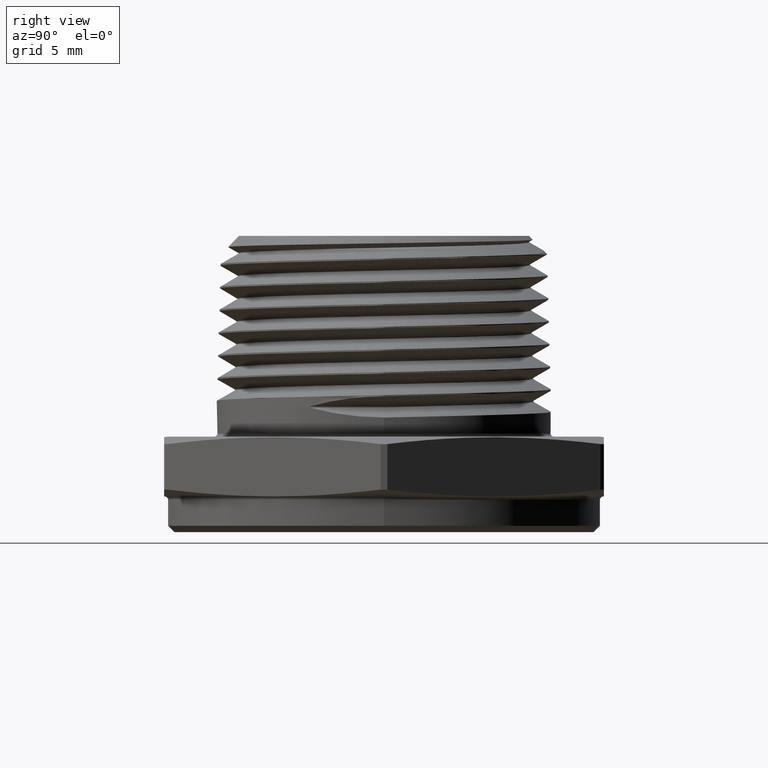
[diagram: clean part render]
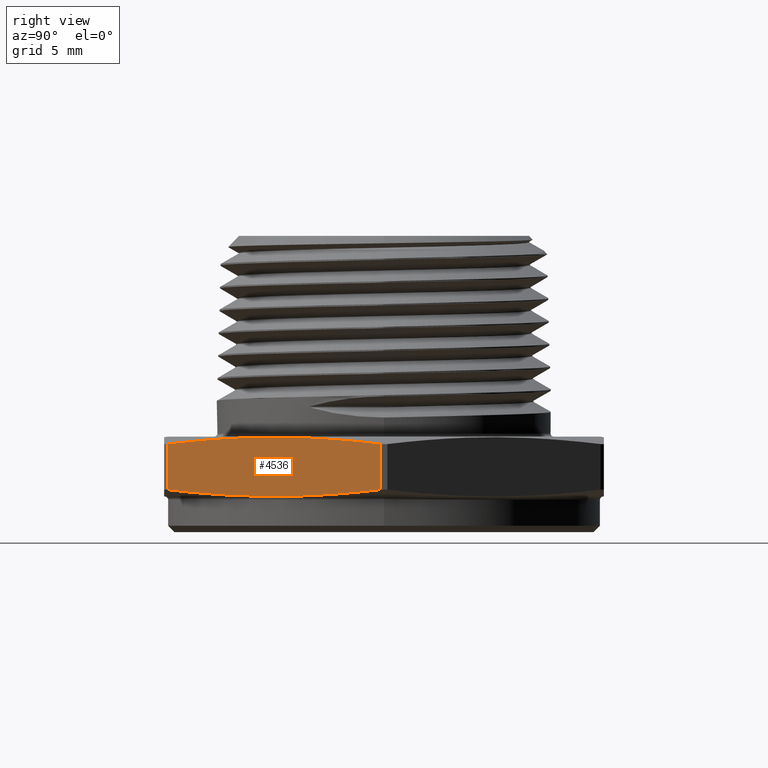
[diagram: same view with one face highlighted and labeled with its STEP entity id]
A machine part, right view. The second image highlights one B-rep face of the part: STEP entity #4536.
In plain terms, the highlighted planar face has unit normal (-0.866, 0.5, 0).
Its self-contained STEP definition (entity closure, byte-faithful):
#984 = CARTESIAN_POINT ( 'NONE',  ( 0.4044415792814493600, -0.6794866359911330100, 0.02353923026989180800 ) ) ;
#988 = CARTESIAN_POINT ( 'NONE',  ( 0.4044415792814493600, -0.6794866359911330100, 0.1664607697301080400 ) ) ;
#991 = CARTESIAN_POINT ( 'NONE',  ( 0.7906734779410755600, -0.01051336400886681900, 0.02353923026989161000 ) ) ;
#1114 = PLANE ( 'NONE',  #3692 ) ;
#1115 = CARTESIAN_POINT ( 'NONE',  ( 0.3983716857408416400, -0.6899999999999996100, 0.1899999999999999700 ) ) ;
#1120 = DIRECTION ( 'NONE',  ( -0.8660254037844386000, 0.5000000000000001100, 0.0000000000000000000 ) ) ;
#1121 = DIRECTION ( 'NONE',  ( -0.5000000000000001100, -0.8660254037844386000, 0.0000000000000000000 ) ) ;
#1290 = B_SPLINE_CURVE_WITH_KNOTS ( 'NONE', 3,
 ( #2914, #2903, #2905, #2916, #2917, #2918, #2919, #2920, #2921 ),
 .UNSPECIFIED., .F., .F.,
 ( 4, 2, 1, 2, 4 ),
 ( 1.926240183754274000E-006, 0.004907071353161006300, 0.009812216466138258500, 0.01471736157911551100, 0.01962250669209276300 ),
 .UNSPECIFIED. ) ;
#1291 = B_SPLINE_CURVE_WITH_KNOTS ( 'NONE', 3,
 ( #2923, #2913, #2915, #2925, #2926, #2927, #2928, #2929, #2930 ),
 .UNSPECIFIED., .F., .F.,
 ( 4, 2, 1, 2, 4 ),
 ( 1.926240183833987000E-006, 0.004907071353161086100, 0.009812216466138338300, 0.01471736157911559100, 0.01962250669209284300 ),
 .UNSPECIFIED. ) ;
#2880 = CARTESIAN_POINT ( 'NONE',  ( 0.7906734779410755600, -0.01051336400886681900, 0.1664607697301079500 ) ) ;
#2903 = CARTESIAN_POINT ( 'NONE',  ( 0.7584874863861066400, -0.06626113667405567100, 0.1731439624358382100 ) ) ;
#2905 = CARTESIAN_POINT ( 'NONE',  ( 0.7263014948311380400, -0.1220089093392446000, 0.1785507198903873400 ) ) ;
#2913 = CARTESIAN_POINT ( 'NONE',  ( 0.4366275708364180700, -0.6237388633259443000, 0.01685603756416147500 ) ) ;
#2914 = CARTESIAN_POINT ( 'NONE',  ( 0.7906734779410755600, -0.01051336400886681900, 0.1664607697301079500 ) ) ;
#2915 = CARTESIAN_POINT ( 'NONE',  ( 0.4688135623913870500, -0.5679910906607554800, 0.01144928010961229200 ) ) ;
#2916 = CARTESIAN_POINT ( 'NONE',  ( 0.6619295117211999600, -0.2335044546696222200, 0.1859262670952154800 ) ) ;
#2917 = CARTESIAN_POINT ( 'NONE',  ( 0.5975575286112624300, -0.3450000000000000300, 0.1898226016713839800 ) ) ;
#2918 = CARTESIAN_POINT ( 'NONE',  ( 0.5331855455013245800, -0.4564955453303776700, 0.1859262670952155400 ) ) ;
#2919 = CARTESIAN_POINT ( 'NONE',  ( 0.4688135623913871100, -0.5679910906607553700, 0.1785507198903874300 ) ) ;
#2920 = CARTESIAN_POINT ( 'NONE',  ( 0.4366275708364181800, -0.6237388633259443000, 0.1731439624358382100 ) ) ;
#2921 = CARTESIAN_POINT ( 'NONE',  ( 0.4044415792814493600, -0.6794866359911330100, 0.1664607697301080400 ) ) ;
#2923 = CARTESIAN_POINT ( 'NONE',  ( 0.4044415792814493600, -0.6794866359911330100, 0.02353923026989180800 ) ) ;
#2925 = CARTESIAN_POINT ( 'NONE',  ( 0.5331855455013245800, -0.4564955453303776200, 0.004073732904784126100 ) ) ;
#2926 = CARTESIAN_POINT ( 'NONE',  ( 0.5975575286112624300, -0.3449999999999999200, 0.0001773983286156863600 ) ) ;
#2927 = CARTESIAN_POINT ( 'NONE',  ( 0.6619295117211999600, -0.2335044546696222500, 0.004073732904784110500 ) ) ;
#2928 = CARTESIAN_POINT ( 'NONE',  ( 0.7263014948311377100, -0.1220089093392446000, 0.01144928010961226100 ) ) ;
#2929 = CARTESIAN_POINT ( 'NONE',  ( 0.7584874863861067500, -0.06626113667405567100, 0.01685603756416143700 ) ) ;
#2930 = CARTESIAN_POINT ( 'NONE',  ( 0.7906734779410755600, -0.01051336400886681900, 0.02353923026989161000 ) ) ;
#3234 = CARTESIAN_POINT ( 'NONE',  ( 0.4044415792814493600, -0.6794866359911330100, 2.364988292110577100E-017 ) ) ;
#3235 = DIRECTION ( 'NONE',  ( -1.224646799147351200E-016, -0.0000000000000000000, -1.000000000000000000 ) ) ;
#3246 = CARTESIAN_POINT ( 'NONE',  ( 0.7906734779410755600, -0.01051336400886681900, -2.364988292110577100E-017 ) ) ;
#3247 = DIRECTION ( 'NONE',  ( 1.224646799147351200E-016, 0.0000000000000000000, 1.000000000000000000 ) ) ;
#3590 = EDGE_CURVE ( 'NONE', #4343, #4339, #4108, .T. ) ;
#3595 = EDGE_CURVE ( 'NONE', #4346, #4330, #4116, .T. ) ;
#3603 = EDGE_CURVE ( 'NONE', #4330, #4343, #1290, .T. ) ;
#3604 = EDGE_CURVE ( 'NONE', #4339, #4346, #1291, .T. ) ;
#3692 = AXIS2_PLACEMENT_3D ( 'NONE', #1115, #1120, #1121 ) ;
#4016 = EDGE_LOOP ( 'NONE', ( #4405, #4406, #4407, #4408 ) ) ;
#4108 = LINE ( 'NONE', #3234, #4110 ) ;
#4110 = VECTOR ( 'NONE', #3235, 39.37007874015748100 ) ;
#4116 = LINE ( 'NONE', #3246, #4118 ) ;
#4118 = VECTOR ( 'NONE', #3247, 39.37007874015748100 ) ;
#4205 = FACE_OUTER_BOUND ( 'NONE', #4016, .T. ) ;
#4330 = VERTEX_POINT ( 'NONE', #2880 ) ;
#4339 = VERTEX_POINT ( 'NONE', #984 ) ;
#4343 = VERTEX_POINT ( 'NONE', #988 ) ;
#4346 = VERTEX_POINT ( 'NONE', #991 ) ;
#4405 = ORIENTED_EDGE ( 'NONE', *, *, #3604, .T. ) ;
#4406 = ORIENTED_EDGE ( 'NONE', *, *, #3595, .T. ) ;
#4407 = ORIENTED_EDGE ( 'NONE', *, *, #3603, .T. ) ;
#4408 = ORIENTED_EDGE ( 'NONE', *, *, #3590, .T. ) ;
#4536 = ADVANCED_FACE ( 'NONE', ( #4205 ), #1114, .F. ) ;